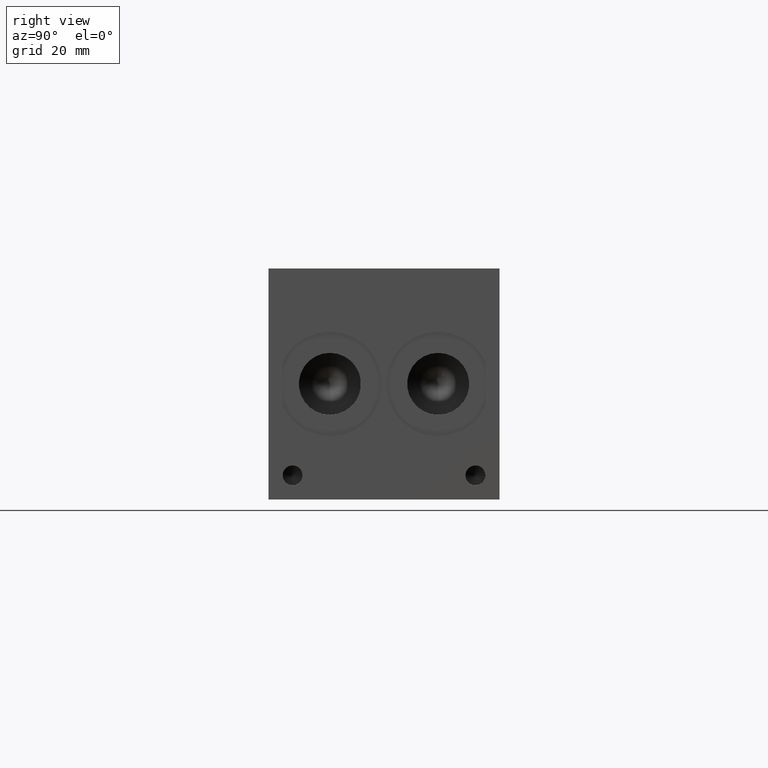
[diagram: clean part render]
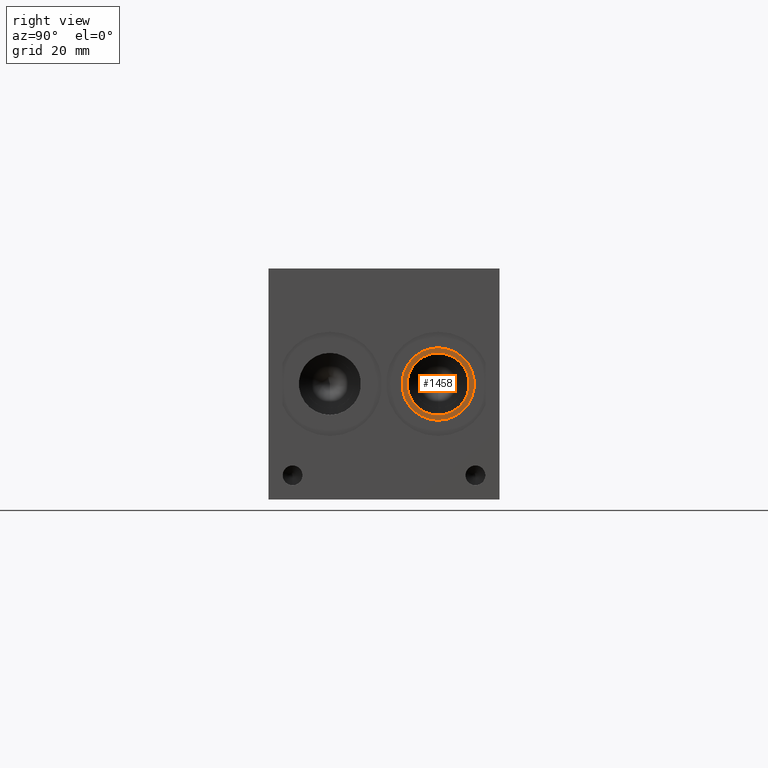
[diagram: same view with one face highlighted and labeled with its STEP entity id]
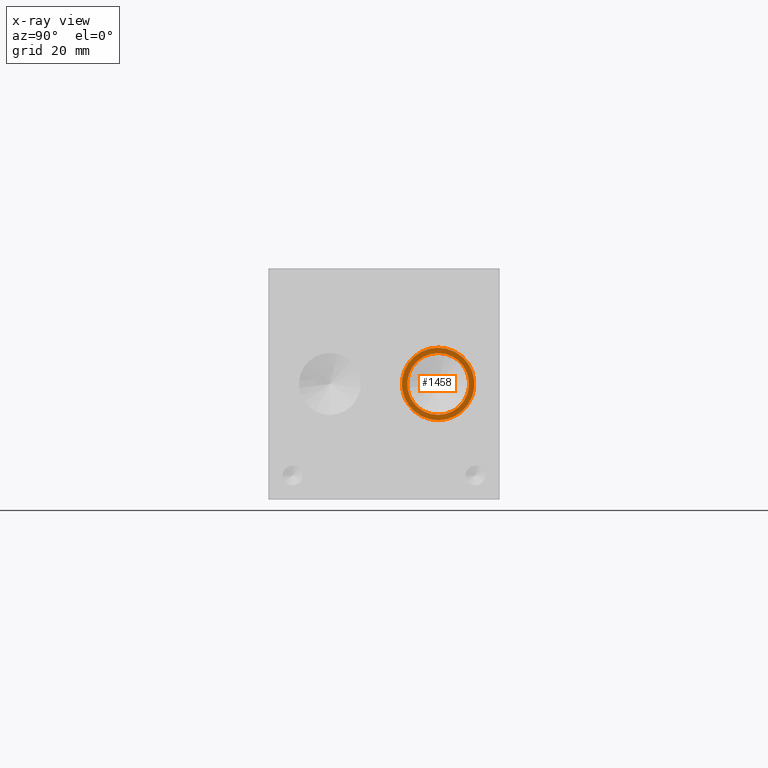
[diagram: x-ray of the same camera — body ghosted, the highlighted face saturated]
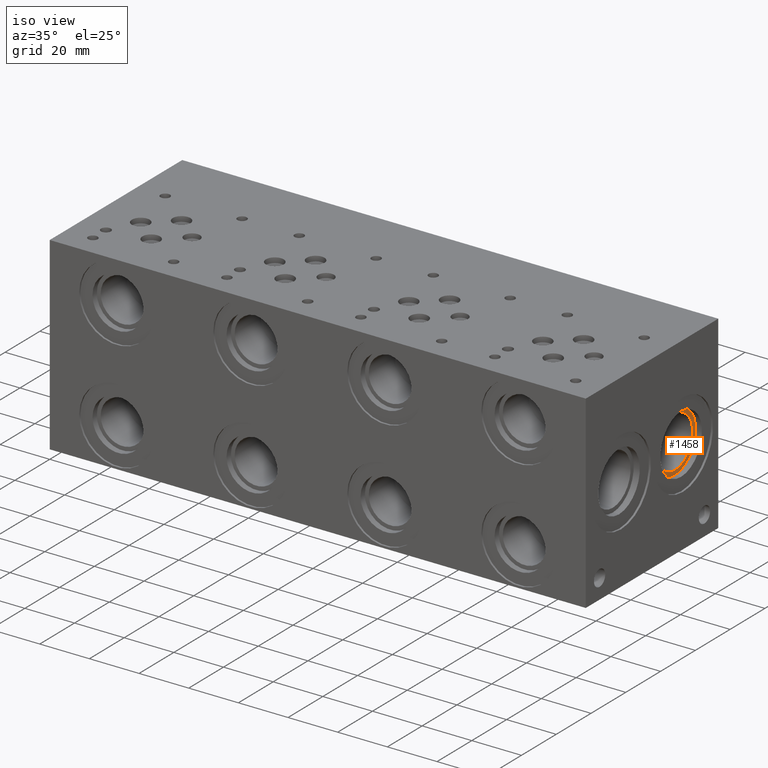
[diagram: same view with one face highlighted and labeled with its STEP entity id]
A machine part, right view. The second image highlights one B-rep face of the part: STEP entity #1458.
The next image is the same camera in x-ray: the body ghosted, the highlighted face saturated — about 0% of this face is hidden behind the body in this view.
A second angle (iso view) of the same face is appended — the face is thin or edge-on in the first view.
In plain terms, the highlighted planar face has unit normal (-1, 0, 0).
Its self-contained STEP definition (entity closure, byte-faithful):
#1424=CARTESIAN_POINT('',(212.6234,55.956200000000003,27.8765));
#1425=VERTEX_POINT('',#1424);
#1426=CARTESIAN_POINT('',(212.6234,55.956200000000003,38.100000000000009));
#1427=DIRECTION('',(1.0,0.0,0.0));
#1428=DIRECTION('',(0.0,0.0,-1.0));
#1429=AXIS2_PLACEMENT_3D('',#1426,#1427,#1428);
#1430=CIRCLE('',#1429,10.223500000000003);
#1431=EDGE_CURVE('',#1425,#1425,#1430,.T.);
#1439=CARTESIAN_POINT('',(212.6234,55.956200000000003,27.012900000000002));
#1440=DIRECTION('',(-1.0,0.0,0.0));
#1441=DIRECTION('',(0.0,0.0,1.0));
#1442=AXIS2_PLACEMENT_3D('',#1439,#1440,#1441);
#1443=PLANE('',#1442);
#1444=CARTESIAN_POINT('',(212.6234,55.956200000000003,26.149300000000004));
#1445=VERTEX_POINT('',#1444);
#1446=CARTESIAN_POINT('',(212.6234,55.956200000000003,38.100000000000009));
#1447=DIRECTION('',(1.0,0.0,0.0));
#1448=DIRECTION('',(0.0,0.0,-1.0));
#1449=AXIS2_PLACEMENT_3D('',#1446,#1447,#1448);
#1450=CIRCLE('',#1449,11.950700000000003);
#1451=EDGE_CURVE('',#1445,#1445,#1450,.T.);
#1452=ORIENTED_EDGE('',*,*,#1451,.T.);
#1453=EDGE_LOOP('',(#1452));
#1454=FACE_OUTER_BOUND('',#1453,.T.);
#1455=ORIENTED_EDGE('',*,*,#1431,.F.);
#1456=EDGE_LOOP('',(#1455));
#1457=FACE_BOUND('',#1456,.T.);
#1458=ADVANCED_FACE('',(#1454,#1457),#1443,.F.);